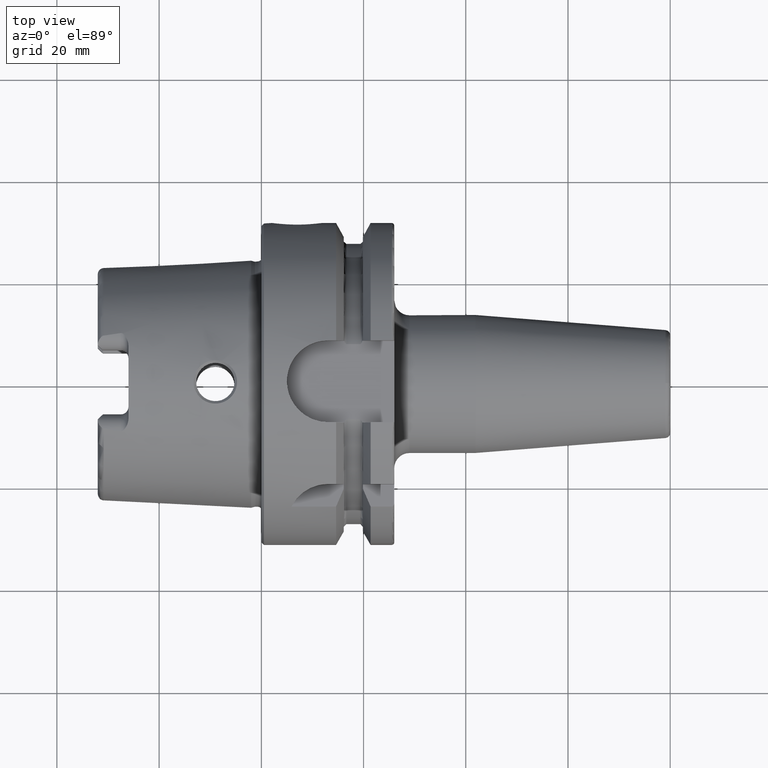
[diagram: clean part render]
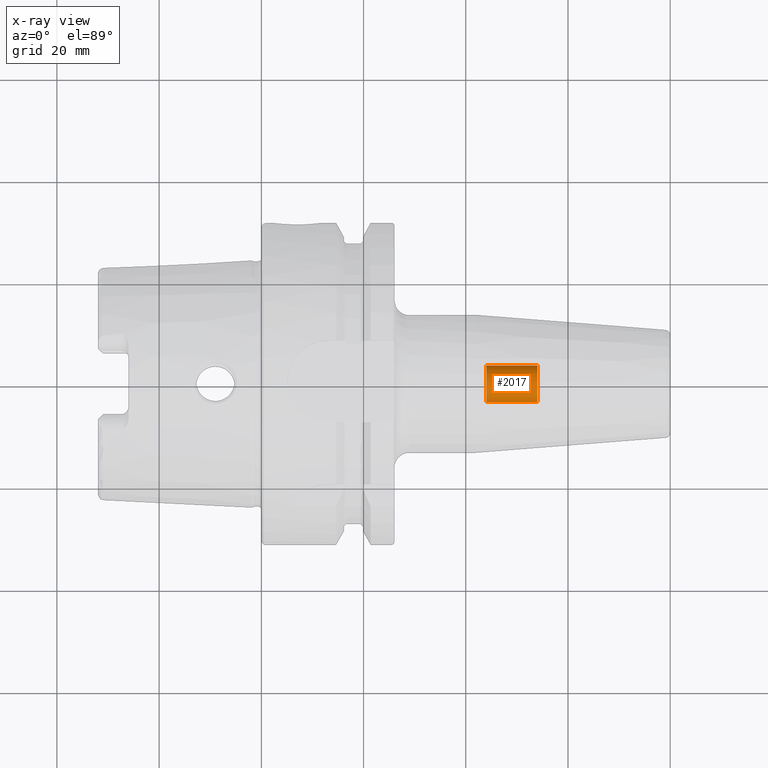
[diagram: x-ray — body ghosted, one internal face saturated and labeled with its STEP entity id]
A machine part, top view, then the same camera in x-ray: the body is ghosted and one INTERNAL B-rep face — a face not visible from any outside direction — is saturated and labeled: STEP entity #2017.
In plain terms, the highlighted cylindrical surface (bore or boss wall) has radius 3.6 mm, axis along (1, 0, 0).
Its self-contained STEP definition (entity closure, byte-faithful):
#184=CYLINDRICAL_SURFACE('',#2186,3.6);
#229=FACE_OUTER_BOUND('',#354,.T.);
#354=EDGE_LOOP('',(#1417,#1418,#1419,#1420));
#487=LINE('',#3124,#597);
#597=VECTOR('',#2507,3.6);
#712=CIRCLE('',#2187,3.6);
#713=CIRCLE('',#2188,3.6);
#849=VERTEX_POINT('',#3121);
#850=VERTEX_POINT('',#3123);
#1068=EDGE_CURVE('',#849,#849,#712,.T.);
#1069=EDGE_CURVE('',#849,#850,#487,.T.);
#1070=EDGE_CURVE('',#850,#850,#713,.T.);
#1417=ORIENTED_EDGE('',*,*,#1068,.T.);
#1418=ORIENTED_EDGE('',*,*,#1069,.T.);
#1419=ORIENTED_EDGE('',*,*,#1070,.F.);
#1420=ORIENTED_EDGE('',*,*,#1069,.F.);
#2017=ADVANCED_FACE('',(#229),#184,.F.);
#2186=AXIS2_PLACEMENT_3D('',#3120,#2503,#2504);
#2187=AXIS2_PLACEMENT_3D('',#3122,#2505,#2506);
#2188=AXIS2_PLACEMENT_3D('',#3125,#2508,#2509);
#2503=DIRECTION('center_axis',(1.,0.,0.));
#2504=DIRECTION('ref_axis',(0.,1.,0.));
#2505=DIRECTION('center_axis',(1.,0.,0.));
#2506=DIRECTION('ref_axis',(0.,0.,-1.));
#2507=DIRECTION('',(-1.,0.,0.));
#2508=DIRECTION('center_axis',(1.,0.,0.));
#2509=DIRECTION('ref_axis',(0.,0.,-1.));
#3120=CARTESIAN_POINT('Origin',(49.,3.33066907387547E-15,0.));
#3121=CARTESIAN_POINT('',(54.,-3.6,-4.40872847693047E-16));
#3122=CARTESIAN_POINT('Origin',(54.,3.33066907387547E-15,0.));
#3123=CARTESIAN_POINT('',(44.,-3.6,-4.40872847693047E-16));
#3124=CARTESIAN_POINT('',(49.,-3.6,-4.40872847693047E-16));
#3125=CARTESIAN_POINT('Origin',(44.,3.33066907387547E-15,0.));